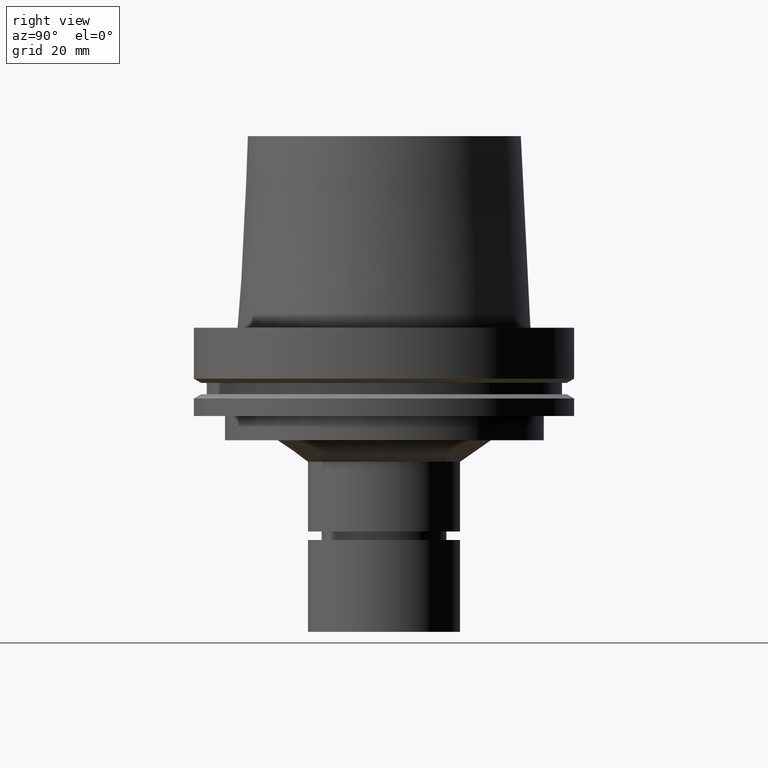
[diagram: clean part render]
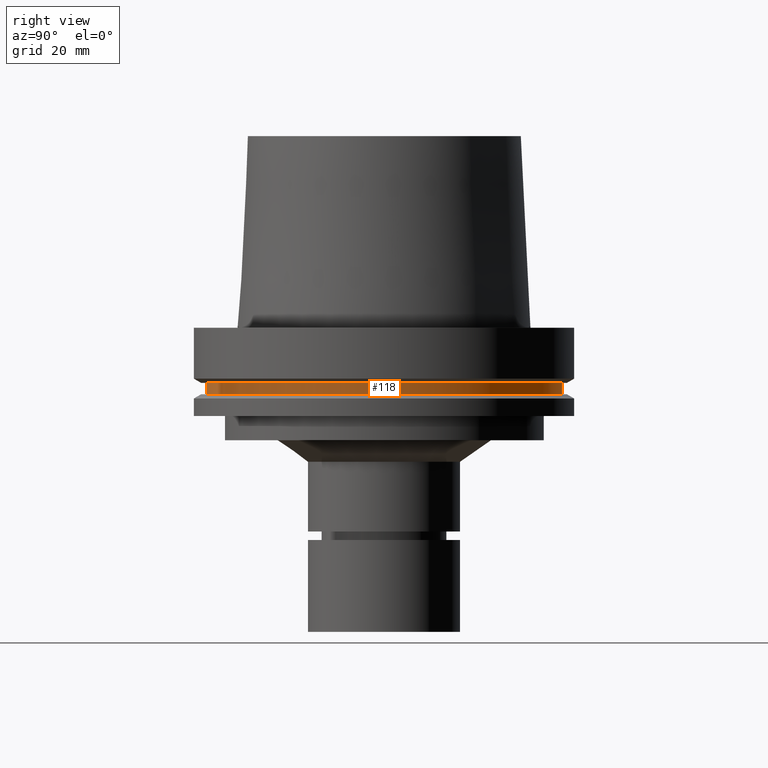
[diagram: same view with one face highlighted and labeled with its STEP entity id]
A machine part, right view. The second image highlights one B-rep face of the part: STEP entity #118.
In plain terms, the highlighted cylindrical surface (bore or boss wall) has radius 58.5 mm, axis along (0, -0, -1).
Its self-contained STEP definition (entity closure, byte-faithful):
#118=ADVANCED_FACE('Unnamed[1]',(#276,#277),#278,.T.);
#158=EDGE_CURVE('Unnamed[1]',#339,#339,#340,.T.);
#168=EDGE_CURVE('Unnamed[1]',#355,#355,#356,.T.);
#276=FACE_BOUND('',#488,.T.);
#277=FACE_BOUND('',#489,.T.);
#278=CYLINDRICAL_SURFACE('',#490,58.5);
#339=VERTEX_POINT('',#566);
#340=CIRCLE('',#567,58.5000000000001);
#355=VERTEX_POINT('',#586);
#356=CIRCLE('',#587,58.4999999999998);
#488=EDGE_LOOP('',(#711));
#489=EDGE_LOOP('',(#712));
#490=AXIS2_PLACEMENT_3D('',#713,#714,#715);
#566=CARTESIAN_POINT('',(1.10983616172739E-015,58.5,-18.1250000000017));
#567=AXIS2_PLACEMENT_3D('',#785,#786,#787);
#586=CARTESIAN_POINT('',(1.33945743656732E-015,58.4999999999998,-21.8749999999984));
#587=AXIS2_PLACEMENT_3D('',#803,#804,#805);
#711=ORIENTED_EDGE('',*,*,#168,.F.);
#712=ORIENTED_EDGE('',*,*,#158,.T.);
#713=CARTESIAN_POINT('',(1.22464679914735E-015,-3.47836332309734E-014,-20.0));
#714=DIRECTION('',(6.12323399573677E-017,-1.01046214935357E-015,-1.0));
#715=DIRECTION('',(5.70458091125032E-032,1.0,-1.01046214935357E-015));
#785=CARTESIAN_POINT('',(1.10983616172739E-015,-3.28890167009372E-014,-18.1250000000016));
#786=DIRECTION('',(6.12323399573677E-017,-1.01046214935357E-015,-1.0));
#787=DIRECTION('',(5.70458091125031E-032,1.0,-1.01046214935357E-015));
#803=CARTESIAN_POINT('',(1.33945743656731E-015,-3.66782497610097E-014,-21.8749999999983));
#804=DIRECTION('',(6.12323399573677E-017,-1.01046214935357E-015,-1.0));
#805=DIRECTION('',(5.70458091125033E-032,1.0,-1.01046214935357E-015));